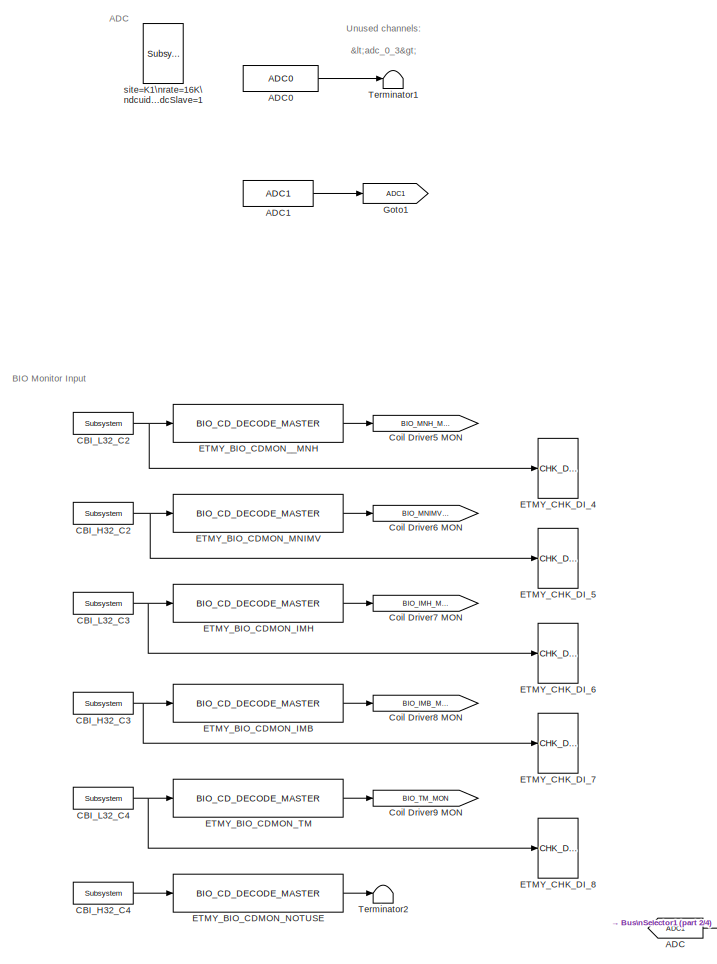
[diagram: root canvas - part 1/4, top left region]
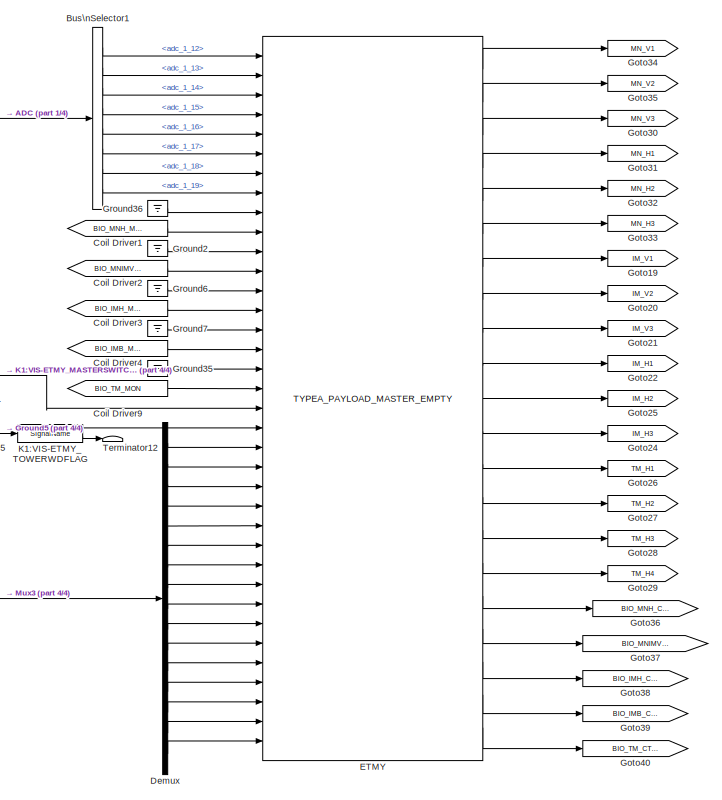
[diagram: root canvas - part 2/4, central region]
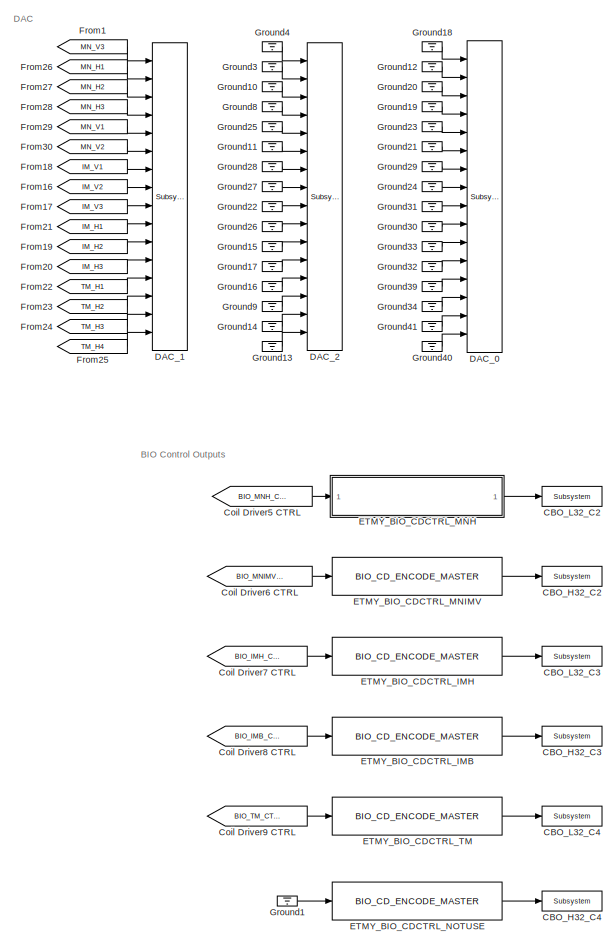
[diagram: root canvas - part 3/4, middle right region]
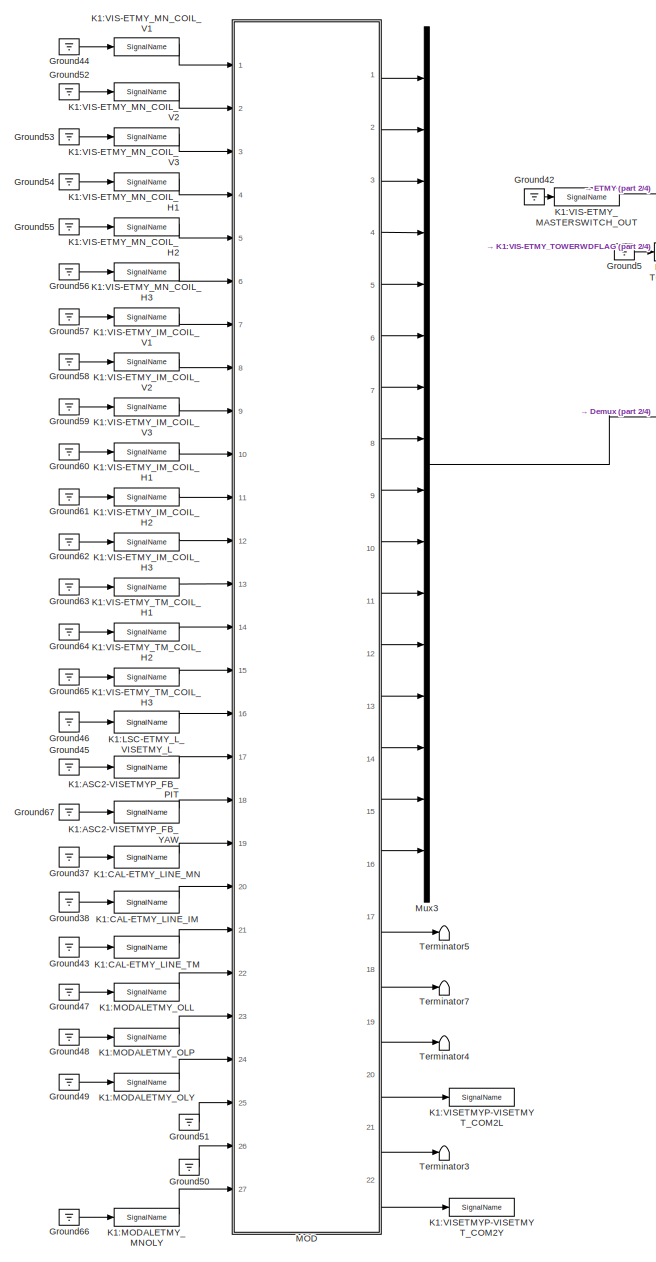
[diagram: root canvas - part 4/4, bottom left region]
MODEL k1visetmyp
KIND model
BLOCK [From] ADC
  GotoTag = ADC1
  SID = 519
BLOCK [Reference] ADC0  REF=cdsAdcx0/ADC0
  AttributesFormatString = %<Description>\\n%<Tag>
  Description = type-GSC_16AI64SSA\ncard_num=0
  Ports = [0, 1]
  SID = 727
  SourceBlock = cdsAdcx0/ADC0
  SourceType = SubSystem
  Tag = cdsAdc
BLOCK [Reference] ADC1  REF=cdsAdcx1/ADC1
  AttributesFormatString = %<Description>\\n%<Tag>
  Description = type-GSC_16AI64SSA\ncard_num=1
  Ports = [0, 1]
  SID = 111
  SourceBlock = cdsAdcx1/ADC1
  SourceType = SubSystem
  Tag = cdsAdc
BLOCK [BusSelector] Bus\nSelector1
  OutputSignals = adc_1_12,adc_1_13,adc_1_14,adc_1_15,adc_1_16,adc_1_17,adc_1_18,adc_1_19
  Ports = [1, 8]
  SID = 696
BLOCK [Reference] CBI_H32_C2  REF=cdsCDI64/Subsystem
  AttributesFormatString = %<Tag>\\n%<Description>
  Description = card_num=5
  Ports = [0, 1]
  SID = 624
  SourceBlock = cdsCDI64/Subsystem
  SourceType = SubSystem
  Tag = cdsCDI64
BLOCK [Reference] CBI_H32_C3  REF=cdsCDI64/Subsystem
  AttributesFormatString = %<Tag>\\n%<Description>
  Description = card_num=7
  Ports = [0, 1]
  SID = 625
  SourceBlock = cdsCDI64/Subsystem
  SourceType = SubSystem
  Tag = cdsCDI64
BLOCK [Reference] CBI_H32_C4  REF=cdsCDI64/Subsystem
  AttributesFormatString = %<Tag>\\n%<Description>
  Description = card_num=9
  Ports = [0, 1]
  SID = 626
  SourceBlock = cdsCDI64/Subsystem
  SourceType = SubSystem
  Tag = cdsCDI64
BLOCK [Reference] CBI_L32_C2  REF=cdsCDI64/Subsystem
  AttributesFormatString = %<Tag>\\n%<Description>
  Description = card_num=4
  Ports = [0, 1]
  SID = 627
  SourceBlock = cdsCDI64/Subsystem
  SourceType = SubSystem
  Tag = cdsCDI64
BLOCK [Reference] CBI_L32_C3  REF=cdsCDI64/Subsystem
  AttributesFormatString = %<Tag>\\n%<Description>
  Description = card_num=6
  Ports = [0, 1]
  SID = 628
  SourceBlock = cdsCDI64/Subsystem
  SourceType = SubSystem
  Tag = cdsCDI64
BLOCK [Reference] CBI_L32_C4  REF=cdsCDI64/Subsystem
  AttributesFormatString = %<Tag>\\n%<Description>
  Description = card_num=8
  Ports = [0, 1]
  SID = 629
  SourceBlock = cdsCDI64/Subsystem
  SourceType = SubSystem
  Tag = cdsCDI64
BLOCK [Reference] CBO_H32_C2  REF=cdsCDO64/Subsystem
  AttributesFormatString = %<Tag>\\n%<Description>
  Description = card_num=5
  Ports = [1]
  SID = 549
  SourceBlock = cdsCDO64/Subsystem
  SourceType = SubSystem
  Tag = cdsCDO64
BLOCK [Reference] CBO_H32_C3  REF=cdsCDO64/Subsystem
  AttributesFormatString = %<Tag>\\n%<Description>
  Description = card_num=7
  Ports = [1]
  SID = 550
  SourceBlock = cdsCDO64/Subsystem
  SourceType = SubSystem
  Tag = cdsCDO64
BLOCK [Reference] CBO_H32_C4  REF=cdsCDO64/Subsystem
  AttributesFormatString = %<Tag>\\n%<Description>
  Description = card_num=9
  Ports = [1]
  SID = 551
  SourceBlock = cdsCDO64/Subsystem
  SourceType = SubSystem
  Tag = cdsCDO64
BLOCK [Reference] CBO_L32_C2  REF=cdsCDO64/Subsystem
  AttributesFormatString = %<Tag>\\n%<Description>
  Description = card_num=4
  Ports = [1]
  SID = 552
  SourceBlock = cdsCDO64/Subsystem
  SourceType = SubSystem
  Tag = cdsCDO64
BLOCK [Reference] CBO_L32_C3  REF=cdsCDO64/Subsystem
  AttributesFormatString = %<Tag>\\n%<Description>
  Description = card_num=6
  Ports = [1]
  SID = 553
  SourceBlock = cdsCDO64/Subsystem
  SourceType = SubSystem
  Tag = cdsCDO64
BLOCK [Reference] CBO_L32_C4  REF=cdsCDO64/Subsystem
  AttributesFormatString = %<Tag>\\n%<Description>
  Description = card_num=8
  Ports = [1]
  SID = 554
  SourceBlock = cdsCDO64/Subsystem
  SourceType = SubSystem
  Tag = cdsCDO64
BLOCK [From] Coil Driver1
  GotoTag = BIO_MNH_MON
  SID = 618
BLOCK [From] Coil Driver2
  GotoTag = BIO_MNIMV_MON
  SID = 619
BLOCK [From] Coil Driver3
  GotoTag = BIO_IMH_MON
  SID = 620
BLOCK [From] Coil Driver4
  GotoTag = BIO_IMB_MON
  SID = 621
BLOCK [From] Coil Driver5 CTRL
  GotoTag = BIO_MNH_CTRL
  SID = 555
BLOCK [Goto] Coil Driver5 MON
  GotoTag = BIO_MNH_MON
  SID = 630
BLOCK [From] Coil Driver6 CTRL
  GotoTag = BIO_MNIMV_CTRL
  SID = 556
BLOCK [Goto] Coil Driver6 MON
  GotoTag = BIO_MNIMV_MON
  SID = 631
BLOCK [From] Coil Driver7 CTRL
  GotoTag = BIO_IMH_CTRL
  SID = 557
BLOCK [Goto] Coil Driver7 MON
  GotoTag = BIO_IMH_MON
  SID = 632
BLOCK [From] Coil Driver8 CTRL
  GotoTag = BIO_IMB_CTRL
  SID = 558
BLOCK [Goto] Coil Driver8 MON
  GotoTag = BIO_IMB_MON
  SID = 633
BLOCK [From] Coil Driver9
  GotoTag = BIO_TM_MON
  SID = 622
BLOCK [From] Coil Driver9 CTRL
  GotoTag = BIO_TM_CTRL
  SID = 559
BLOCK [Goto] Coil Driver9 MON
  GotoTag = BIO_TM_MON
  SID = 634
BLOCK [Reference] DAC_0  REF=dac/Subsystem  (lib defined in slx_40ef132df75b, slx_b7657ccccc5b, +4 more)
  AttributesFormatString = %<Description>
  Description = type=GSC_16AO16,\ncard_num=0
  Ports = [16]
  SID = 729
  SourceBlock = dac/Subsystem
  SourceType = SubSystem
BLOCK [Reference] DAC_1  REF=dac/Subsystem  (lib defined in slx_40ef132df75b, slx_b7657ccccc5b, +4 more)
  AttributesFormatString = %<Description>
  Description = type=GSC_16AO16,\ncard_num=1
  Ports = [16]
  SID = 112
  SourceBlock = dac/Subsystem
  SourceType = SubSystem
BLOCK [Reference] DAC_2  REF=dac/Subsystem  (lib defined in slx_40ef132df75b, slx_b7657ccccc5b, +4 more)
  AttributesFormatString = %<Description>
  Description = type=GSC_16AO16,\ncard_num=2
  Ports = [16]
  SID = 643
  SourceBlock = dac/Subsystem
  SourceType = SubSystem
BLOCK [Demux] Demux
  DisplayOption = bar
  Outputs = 16
  Ports = [1, 16]
  SID = 879
BLOCK [Reference] ETMY  REF=TYPEA_MASTER/TYPEA_PAYLOAD_MASTER_EMPTY
  Ports = [36, 21]
  SID = 1086
  SourceBlock = TYPEA_MASTER/TYPEA_PAYLOAD_MASTER_EMPTY
  SourceType = SubSystem
BLOCK [Reference] ETMY_BIO_CDCTRL_IMB  REF=BIO_CD_ENCODE_MASTER/BIO_CD_ENCODE_MASTER
  Ports = [1, 1]
  SID = 560
  SourceBlock = BIO_CD_ENCODE_MASTER/BIO_CD_ENCODE_MASTER
  SourceType = SubSystem
BLOCK [Reference] ETMY_BIO_CDCTRL_IMH  REF=BIO_CD_ENCODE_MASTER/BIO_CD_ENCODE_MASTER
  Ports = [1, 1]
  SID = 561
  SourceBlock = BIO_CD_ENCODE_MASTER/BIO_CD_ENCODE_MASTER
  SourceType = SubSystem
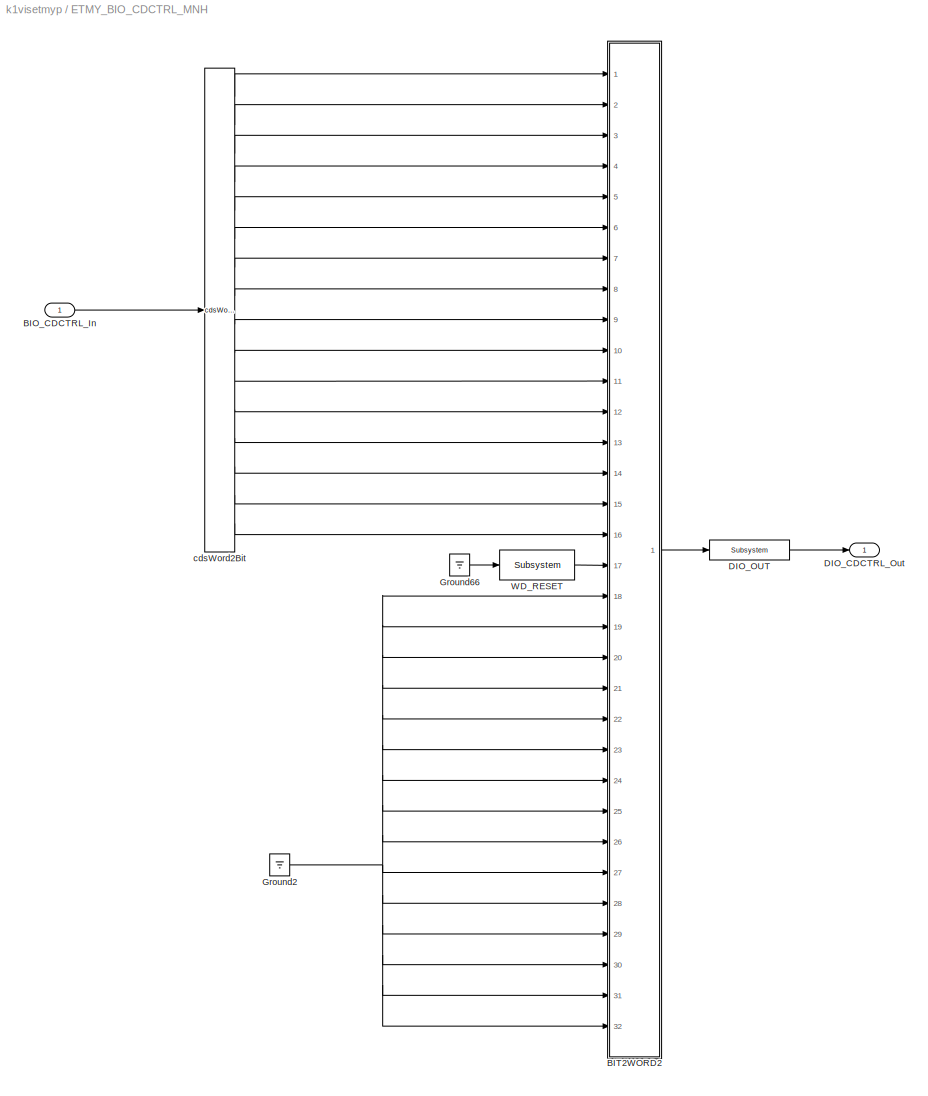
BLOCK [SubSystem] ETMY_BIO_CDCTRL_MNH
  Ports = [1, 1]
  RequestExecContextInheritance = off
  SID = 562
  Variant = off
BLOCK [Inport] ETMY_BIO_CDCTRL_MNH/BIO_CDCTRL_In
  IconDisplay = Port number
  SID = 563
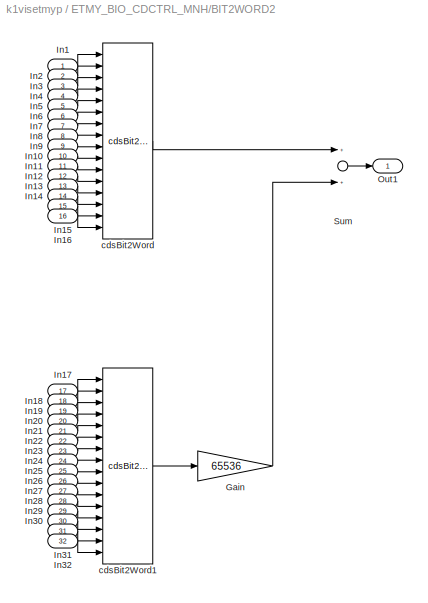
BLOCK [SubSystem] ETMY_BIO_CDCTRL_MNH/BIT2WORD2
  Ports = [32, 1]
  RequestExecContextInheritance = off
  SID = 564
  Variant = off
BLOCK [Gain] ETMY_BIO_CDCTRL_MNH/BIT2WORD2/Gain
  Gain = 65536
  OutDataTypeStr = Inherit: Inherit via internal rule
  ParamDataTypeStr = Inherit: Inherit via internal rule
  SID = 597
  SaturateOnIntegerOverflow = off
BLOCK [Inport] ETMY_BIO_CDCTRL_MNH/BIT2WORD2/In1
  IconDisplay = Port number
  SID = 565
BLOCK [Inport] ETMY_BIO_CDCTRL_MNH/BIT2WORD2/In10
  IconDisplay = Port number
  Port = 10
  SID = 574
BLOCK [Inport] ETMY_BIO_CDCTRL_MNH/BIT2WORD2/In11
  IconDisplay = Port number
  Port = 11
  SID = 575
BLOCK [Inport] ETMY_BIO_CDCTRL_MNH/BIT2WORD2/In12
  IconDisplay = Port number
  Port = 12
  SID = 576
BLOCK [Inport] ETMY_BIO_CDCTRL_MNH/BIT2WORD2/In13
  IconDisplay = Port number
  Port = 13
  SID = 577
BLOCK [Inport] ETMY_BIO_CDCTRL_MNH/BIT2WORD2/In14
  IconDisplay = Port number
  Port = 14
  SID = 578
BLOCK [Inport] ETMY_BIO_CDCTRL_MNH/BIT2WORD2/In15
  IconDisplay = Port number
  Port = 15
  SID = 579
BLOCK [Inport] ETMY_BIO_CDCTRL_MNH/BIT2WORD2/In16
  IconDisplay = Port number
  Port = 16
  SID = 580
BLOCK [Inport] ETMY_BIO_CDCTRL_MNH/BIT2WORD2/In17
  IconDisplay = Port number
  Port = 17
  SID = 581
BLOCK [Inport] ETMY_BIO_CDCTRL_MNH/BIT2WORD2/In18
  IconDisplay = Port number
  Port = 18
  SID = 582
BLOCK [Inport] ETMY_BIO_CDCTRL_MNH/BIT2WORD2/In19
  IconDisplay = Port number
  Port = 19
  SID = 583
BLOCK [Inport] ETMY_BIO_CDCTRL_MNH/BIT2WORD2/In2
  IconDisplay = Port number
  Port = 2
  SID = 566
BLOCK [Inport] ETMY_BIO_CDCTRL_MNH/BIT2WORD2/In20
  IconDisplay = Port number
  Port = 20
  SID = 584
BLOCK [Inport] ETMY_BIO_CDCTRL_MNH/BIT2WORD2/In21
  IconDisplay = Port number
  Port = 21
  SID = 585
BLOCK [Inport] ETMY_BIO_CDCTRL_MNH/BIT2WORD2/In22
  IconDisplay = Port number
  Port = 22
  SID = 586
BLOCK [Inport] ETMY_BIO_CDCTRL_MNH/BIT2WORD2/In23
  IconDisplay = Port number
  Port = 23
  SID = 587
BLOCK [Inport] ETMY_BIO_CDCTRL_MNH/BIT2WORD2/In24
  IconDisplay = Port number
  Port = 24
  SID = 588
BLOCK [Inport] ETMY_BIO_CDCTRL_MNH/BIT2WORD2/In25
  IconDisplay = Port number
  Port = 25
  SID = 589
BLOCK [Inport] ETMY_BIO_CDCTRL_MNH/BIT2WORD2/In26
  IconDisplay = Port number
  Port = 26
  SID = 590
BLOCK [Inport] ETMY_BIO_CDCTRL_MNH/BIT2WORD2/In27
  IconDisplay = Port number
  Port = 27
  SID = 591
BLOCK [Inport] ETMY_BIO_CDCTRL_MNH/BIT2WORD2/In28
  IconDisplay = Port number
  Port = 28
  SID = 592
BLOCK [Inport] ETMY_BIO_CDCTRL_MNH/BIT2WORD2/In29
  IconDisplay = Port number
  Port = 29
  SID = 593
BLOCK [Inport] ETMY_BIO_CDCTRL_MNH/BIT2WORD2/In3
  IconDisplay = Port number
  Port = 3
  SID = 567
BLOCK [Inport] ETMY_BIO_CDCTRL_MNH/BIT2WORD2/In30
  IconDisplay = Port number
  Port = 30
  SID = 594
BLOCK [Inport] ETMY_BIO_CDCTRL_MNH/BIT2WORD2/In31
  IconDisplay = Port number
  Port = 31
  SID = 595
BLOCK [Inport] ETMY_BIO_CDCTRL_MNH/BIT2WORD2/In32
  IconDisplay = Port number
  Port = 32
  SID = 596
BLOCK [Inport] ETMY_BIO_CDCTRL_MNH/BIT2WORD2/In4
  IconDisplay = Port number
  Port = 4
  SID = 568
BLOCK [Inport] ETMY_BIO_CDCTRL_MNH/BIT2WORD2/In5
  IconDisplay = Port number
  Port = 5
  SID = 569
BLOCK [Inport] ETMY_BIO_CDCTRL_MNH/BIT2WORD2/In6
  IconDisplay = Port number
  Port = 6
  SID = 570
BLOCK [Inport] ETMY_BIO_CDCTRL_MNH/BIT2WORD2/In7
  IconDisplay = Port number
  Port = 7
  SID = 571
BLOCK [Inport] ETMY_BIO_CDCTRL_MNH/BIT2WORD2/In8
  IconDisplay = Port number
  Port = 8
  SID = 572
BLOCK [Inport] ETMY_BIO_CDCTRL_MNH/BIT2WORD2/In9
  IconDisplay = Port number
  Port = 9
  SID = 573
BLOCK [Outport] ETMY_BIO_CDCTRL_MNH/BIT2WORD2/Out1
  IconDisplay = Port number
  SID = 601
BLOCK [Sum] ETMY_BIO_CDCTRL_MNH/BIT2WORD2/Sum
  InputSameDT = off
  OutDataTypeStr = Inherit: Inherit via internal rule
  Ports = [2, 1]
  SID = 598
  SaturateOnIntegerOverflow = off
BLOCK [Reference] ETMY_BIO_CDCTRL_MNH/BIT2WORD2/cdsBit2Word  REF=cdsBit2Word/cdsBit2Word
  AttributesFormatString = %<Tag>
  Description = Forms single 16 bit integer from 16 0/1 inputs.
  Ports = [16, 1]
  SID = 599
  SourceBlock = cdsBit2Word/cdsBit2Word
  SourceType = SubSystem
  Tag = cdsBit2Word
BLOCK [Reference] ETMY_BIO_CDCTRL_MNH/BIT2WORD2/cdsBit2Word1  REF=cdsBit2Word/cdsBit2Word
  AttributesFormatString = %<Tag>
  Description = Forms single 16 bit integer from 16 0/1 inputs.
  Ports = [16, 1]
  SID = 600
  SourceBlock = cdsBit2Word/cdsBit2Word
  SourceType = SubSystem
  Tag = cdsBit2Word
BLOCK [Outport] ETMY_BIO_CDCTRL_MNH/DIO_CDCTRL_Out
  IconDisplay = Port number
  SID = 607
BLOCK [Reference] ETMY_BIO_CDCTRL_MNH/DIO_OUT  REF=cdsEpicsOut/Subsystem
  AttributesFormatString = %<Tag>
  Description = Purpose:                                          \nOutput a FE signal to an EPICS channel.           \n                                                  \nOperation:                                        \nTakes input value and passes it to EPICS record.  \n                                                  \nUsage:                                            \nName the part with the desired EPICS...<+14ch>
  Ports = [1, 1]
  SID = 602
  SourceBlock = cdsEpicsOut/Subsystem
  SourceType = SubSystem
  Tag = cdsEpicsOutput
BLOCK [Ground] ETMY_BIO_CDCTRL_MNH/Ground2
  SID = 603
BLOCK [Ground] ETMY_BIO_CDCTRL_MNH/Ground66
  SID = 604
BLOCK [Reference] ETMY_BIO_CDCTRL_MNH/WD_RESET  REF=cdsEpicsBinIn/Subsystem
  AttributesFormatString = %<Tag>
  Description = Purpose:                                                                            \nCreate an EPICS binary (0 or 1) input channel to the FE realtime controls.          \n                                                                                    \nOperation:                                                                          \nOutputs value from an EPICS ai record. Value is binary i...<+252ch>
  Ports = [1, 1]
  SID = 605
  SourceBlock = cdsEpicsBinIn/Subsystem
  SourceType = SubSystem
  Tag = cdsEpicsBinIn
BLOCK [Reference] ETMY_BIO_CDCTRL_MNH/cdsWord2Bit  REF=cdsWord2Bit/cdsWord2Bit
  AttributesFormatString = cdsWord2Bit
  Description = Generate 16 0/1 outputs from single 16-bit integer input
  Ports = [1, 16]
  SID = 606
  SourceBlock = cdsWord2Bit/cdsWord2Bit
  SourceType = SubSystem
  Tag = cdsWord2Bit
BLOCK [Reference] ETMY_BIO_CDCTRL_MNIMV  REF=BIO_CD_ENCODE_MASTER/BIO_CD_ENCODE_MASTER
  Ports = [1, 1]
  SID = 608
  SourceBlock = BIO_CD_ENCODE_MASTER/BIO_CD_ENCODE_MASTER
  SourceType = SubSystem
BLOCK [Reference] ETMY_BIO_CDCTRL_NOTUSE  REF=BIO_CD_ENCODE_MASTER/BIO_CD_ENCODE_MASTER
  Ports = [1, 1]
  SID = 609
  SourceBlock = BIO_CD_ENCODE_MASTER/BIO_CD_ENCODE_MASTER
  SourceType = SubSystem
BLOCK [Reference] ETMY_BIO_CDCTRL_TM  REF=BIO_CD_ENCODE_MASTER/BIO_CD_ENCODE_MASTER
  Ports = [1, 1]
  SID = 610
  SourceBlock = BIO_CD_ENCODE_MASTER/BIO_CD_ENCODE_MASTER
  SourceType = SubSystem
BLOCK [Reference] ETMY_BIO_CDMON_IMB  REF=BIO_CD_DECODE_MASTER/BIO_CD_DECODE_MASTER
  Ports = [1, 1]
  SID = 635
  SourceBlock = BIO_CD_DECODE_MASTER/BIO_CD_DECODE_MASTER
  SourceType = SubSystem
BLOCK [Reference] ETMY_BIO_CDMON_IMH  REF=BIO_CD_DECODE_MASTER/BIO_CD_DECODE_MASTER
  Ports = [1, 1]
  SID = 636
  SourceBlock = BIO_CD_DECODE_MASTER/BIO_CD_DECODE_MASTER
  SourceType = SubSystem
BLOCK [Reference] ETMY_BIO_CDMON_MNIMV  REF=BIO_CD_DECODE_MASTER/BIO_CD_DECODE_MASTER
  Ports = [1, 1]
  SID = 637
  SourceBlock = BIO_CD_DECODE_MASTER/BIO_CD_DECODE_MASTER
  SourceType = SubSystem
BLOCK [Reference] ETMY_BIO_CDMON_NOTUSE  REF=BIO_CD_DECODE_MASTER/BIO_CD_DECODE_MASTER
  Ports = [1, 1]
  SID = 638
  SourceBlock = BIO_CD_DECODE_MASTER/BIO_CD_DECODE_MASTER
  SourceType = SubSystem
BLOCK [Reference] ETMY_BIO_CDMON_TM  REF=BIO_CD_DECODE_MASTER/BIO_CD_DECODE_MASTER
  Ports = [1, 1]
  SID = 639
  SourceBlock = BIO_CD_DECODE_MASTER/BIO_CD_DECODE_MASTER
  SourceType = SubSystem
BLOCK [Reference] ETMY_BIO_CDMON__MNH  REF=BIO_CD_DECODE_MASTER/BIO_CD_DECODE_MASTER
  Ports = [1, 1]
  SID = 640
  SourceBlock = BIO_CD_DECODE_MASTER/BIO_CD_DECODE_MASTER
  SourceType = SubSystem
BLOCK [Reference] ETMY_CHK_DI_4  REF=CHK_DIO/CHK_DI_0
  Ports = [1]
  SID = 687
  SourceBlock = CHK_DIO/CHK_DI_0
  SourceType = SubSystem
BLOCK [Reference] ETMY_CHK_DI_5  REF=CHK_DIO/CHK_DI_0
  Ports = [1]
  SID = 688
  SourceBlock = CHK_DIO/CHK_DI_0
  SourceType = SubSystem
BLOCK [Reference] ETMY_CHK_DI_6  REF=CHK_DIO/CHK_DI_0
  Ports = [1]
  SID = 689
  SourceBlock = CHK_DIO/CHK_DI_0
  SourceType = SubSystem
BLOCK [Reference] ETMY_CHK_DI_7  REF=CHK_DIO/CHK_DI_0
  Ports = [1]
  SID = 690
  SourceBlock = CHK_DIO/CHK_DI_0
  SourceType = SubSystem
BLOCK [Reference] ETMY_CHK_DI_8  REF=CHK_DIO/CHK_DI_0
  Ports = [1]
  SID = 691
  SourceBlock = CHK_DIO/CHK_DI_0
  SourceType = SubSystem
BLOCK [From] From1
  GotoTag = MN_V3
  SID = 533
BLOCK [From] From16
  GotoTag = IM_V2
  SID = 534
BLOCK [From] From17
  GotoTag = IM_V3
  SID = 535
BLOCK [From] From18
  GotoTag = IM_V1
  SID = 536
BLOCK [From] From19
  GotoTag = IM_H2
  SID = 537
BLOCK [From] From20
  GotoTag = IM_H3
  SID = 538
BLOCK [From] From21
  GotoTag = IM_H1
  SID = 539
BLOCK [From] From22
  GotoTag = TM_H1
  SID = 540
BLOCK [From] From23
  GotoTag = TM_H2
  SID = 541
BLOCK [From] From24
  GotoTag = TM_H3
  SID = 542
BLOCK [From] From25
  GotoTag = TM_H4
  SID = 543
BLOCK [From] From26
  GotoTag = MN_H1
  SID = 544
BLOCK [From] From27
  GotoTag = MN_H2
  SID = 545
BLOCK [From] From28
  GotoTag = MN_H3
  SID = 546
BLOCK [From] From29
  GotoTag = MN_V1
  SID = 547
BLOCK [From] From30
  GotoTag = MN_V2
  SID = 548
BLOCK [Goto] Goto1
  GotoTag = ADC1
  SID = 518
BLOCK [Goto] Goto19
  GotoTag = IM_V1
  SID = 502
BLOCK [Goto] Goto20
  GotoTag = IM_V2
  SID = 503
BLOCK [Goto] Goto21
  GotoTag = IM_V3
  SID = 504
BLOCK [Goto] Goto22
  GotoTag = IM_H1
  SID = 505
BLOCK [Goto] Goto24
  GotoTag = IM_H3
  SID = 506
BLOCK [Goto] Goto25
  GotoTag = IM_H2
  SID = 507
BLOCK [Goto] Goto26
  GotoTag = TM_H1
  SID = 508
BLOCK [Goto] Goto27
  GotoTag = TM_H2
  SID = 509
BLOCK [Goto] Goto28
  GotoTag = TM_H3
  SID = 510
BLOCK [Goto] Goto29
  GotoTag = TM_H4
  SID = 511
BLOCK [Goto] Goto30
  GotoTag = MN_V3
  SID = 512
BLOCK [Goto] Goto31
  GotoTag = MN_H1
  SID = 513
BLOCK [Goto] Goto32
  GotoTag = MN_H2
  SID = 514
BLOCK [Goto] Goto33
  GotoTag = MN_H3
  SID = 515
BLOCK [Goto] Goto34
  GotoTag = MN_V1
  SID = 516
BLOCK [Goto] Goto35
  GotoTag = MN_V2
  SID = 517
BLOCK [Goto] Goto36
  GotoTag = BIO_MNH_CTRL
  SID = 613
BLOCK [Goto] Goto37
  GotoTag = BIO_MNIMV_CTRL
  SID = 614
BLOCK [Goto] Goto38
  GotoTag = BIO_IMH_CTRL
  SID = 615
BLOCK [Goto] Goto39
  GotoTag = BIO_IMB_CTRL
  SID = 616
BLOCK [Goto] Goto40
  GotoTag = BIO_TM_CTRL
  SID = 617
BLOCK [Ground] Ground1
  SID = 611
BLOCK [Ground] Ground10
  SID = 1092
BLOCK [Ground] Ground11
  SID = 653
BLOCK [Ground] Ground12
  SID = 730
BLOCK [Ground] Ground13
  SID = 655
BLOCK [Ground] Ground14
  SID = 656
BLOCK [Ground] Ground15
  SID = 657
BLOCK [Ground] Ground16
  SID = 658
BLOCK [Ground] Ground17
  SID = 659
BLOCK [Ground] Ground18
  SID = 731
BLOCK [Ground] Ground19
  SID = 732
BLOCK [Ground] Ground2
  SID = 795
BLOCK [Ground] Ground20
  SID = 733
BLOCK [Ground] Ground21
  SID = 734
BLOCK [Ground] Ground22
  SID = 663
BLOCK [Ground] Ground23
  SID = 735
BLOCK [Ground] Ground24
  SID = 736
BLOCK [Ground] Ground25
  SID = 665
BLOCK [Ground] Ground26
  SID = 666
BLOCK [Ground] Ground27
  SID = 667
BLOCK [Ground] Ground28
  SID = 668
BLOCK [Ground] Ground29
  SID = 737
BLOCK [Ground] Ground3
  SID = 1089
BLOCK [Ground] Ground30
  SID = 738
BLOCK [Ground] Ground31
  SID = 739
BLOCK [Ground] Ground32
  SID = 740
BLOCK [Ground] Ground33
  SID = 741
BLOCK [Ground] Ground34
  SID = 742
BLOCK [Ground] Ground35
  SID = 798
BLOCK [Ground] Ground36
  SID = 799
BLOCK [Ground] Ground37
  SID = 803
BLOCK [Ground] Ground38
  SID = 806
BLOCK [Ground] Ground39
  SID = 743
BLOCK [Ground] Ground4
  SID = 1090
BLOCK [Ground] Ground40
  SID = 744
BLOCK [Ground] Ground41
  SID = 745
BLOCK [Ground] Ground42
  SID = 1093
BLOCK [Ground] Ground43
  SID = 756
BLOCK [Ground] Ground44
  SID = 998
BLOCK [Ground] Ground45
  SID = 1084
BLOCK [Ground] Ground46
  SID = 759
BLOCK [Ground] Ground47
  SID = 1107
BLOCK [Ground] Ground48
  SID = 1108
BLOCK [Ground] Ground49
  SID = 1109
BLOCK [Ground] Ground5
  SID = 726
BLOCK [Ground] Ground50
  SID = 1113
BLOCK [Ground] Ground51
  SID = 1114
BLOCK [Ground] Ground52
  SID = 999
BLOCK [Ground] Ground53
  SID = 1000
BLOCK [Ground] Ground54
  SID = 1001
BLOCK [Ground] Ground55
  SID = 1002
BLOCK [Ground] Ground56
  SID = 1003
BLOCK [Ground] Ground57
  SID = 1004
BLOCK [Ground] Ground58
  SID = 1005
BLOCK [Ground] Ground59
  SID = 1006
BLOCK [Ground] Ground6
  SID = 796
BLOCK [Ground] Ground60
  SID = 1007
BLOCK [Ground] Ground61
  SID = 1008
BLOCK [Ground] Ground62
  SID = 1009
BLOCK [Ground] Ground63
  SID = 1010
BLOCK [Ground] Ground64
  SID = 1011
BLOCK [Ground] Ground65
  SID = 1012
BLOCK [Ground] Ground66
  SID = 1115
BLOCK [Ground] Ground67
  SID = 1085
BLOCK [Ground] Ground7
  SID = 797
BLOCK [Ground] Ground8
  SID = 1091
BLOCK [Ground] Ground9
  SID = 651
BLOCK [Reference] K1:ASC2-VISETMYP_FB_PIT  REF=cdsIPCx/SignalName
  AttributesFormatString = %<Description>\\n%<Tag>
  Description = card=1
  Ports = [1, 2]
  SID = 1080
  SourceBlock = cdsIPCx/SignalName
  SourceType = SubSystem
  Tag = cdsIPCx_RFM
BLOCK [Reference] K1:ASC2-VISETMYP_FB_YAW  REF=cdsIPCx/SignalName
  AttributesFormatString = %<Description>\\n%<Tag>
  Description = card=1
  Ports = [1, 2]
  SID = 1081
  SourceBlock = cdsIPCx/SignalName
  SourceType = SubSystem
  Tag = cdsIPCx_RFM
BLOCK [Reference] K1:CAL-ETMY_LINE_IM  REF=cdsIPCx/SignalName
  AttributesFormatString = %<Description>\\n%<Tag>
  Description = card=1
  Ports = [1, 2]
  SID = 807
  SourceBlock = cdsIPCx/SignalName
  SourceType = SubSystem
  Tag = cdsIPCx_RFM
BLOCK [Reference] K1:CAL-ETMY_LINE_MN  REF=cdsIPCx/SignalName
  AttributesFormatString = %<Description>\\n%<Tag>
  Description = card=1
  Ports = [1, 2]
  SID = 804
  SourceBlock = cdsIPCx/SignalName
  SourceType = SubSystem
  Tag = cdsIPCx_RFM
BLOCK [Reference] K1:CAL-ETMY_LINE_TM  REF=cdsIPCx/SignalName
  AttributesFormatString = %<Description>\\n%<Tag>
  Description = card=1
  Ports = [1, 2]
  SID = 762
  SourceBlock = cdsIPCx/SignalName
  SourceType = SubSystem
  Tag = cdsIPCx_RFM
BLOCK [Reference] K1:LSC-ETMY_L_VISETMY_L  REF=cdsIPCx/SignalName
  AttributesFormatString = %<Description>\\n%<Tag>
  Description = card=1
  Ports = [1, 2]
  SID = 763
  SourceBlock = cdsIPCx/SignalName
  SourceType = SubSystem
  Tag = cdsIPCx_RFM
BLOCK [Reference] K1:MODALETMY_MNOLY  REF=cdsIPCx/SignalName
  AttributesFormatString = %<Tag>
  Description = Inter-Process Communication via Shared memory.
  Ports = [1, 2]
  SID = 1116
  SourceBlock = cdsIPCx/SignalName
  SourceType = SubSystem
  Tag = cdsIPCx_SHMEM
BLOCK [Reference] K1:MODALETMY_OLL  REF=cdsIPCx/SignalName
  AttributesFormatString = %<Tag>
  Description = Inter-Process Communication via Shared memory.
  Ports = [1, 2]
  SID = 1101
  SourceBlock = cdsIPCx/SignalName
  SourceType = SubSystem
  Tag = cdsIPCx_SHMEM
BLOCK [Reference] K1:MODALETMY_OLP  REF=cdsIPCx/SignalName
  AttributesFormatString = %<Tag>
  Description = Inter-Process Communication via Shared memory.
  Ports = [1, 2]
  SID = 1102
  SourceBlock = cdsIPCx/SignalName
  SourceType = SubSystem
  Tag = cdsIPCx_SHMEM
BLOCK [Reference] K1:MODALETMY_OLY  REF=cdsIPCx/SignalName
  AttributesFormatString = %<Tag>
  Description = Inter-Process Communication via Shared memory.
  Ports = [1, 2]
  SID = 1103
  SourceBlock = cdsIPCx/SignalName
  SourceType = SubSystem
  Tag = cdsIPCx_SHMEM
BLOCK [Reference] K1:VIS-ETMY_IM_COIL_H1  REF=cdsIPCx/SignalName
  AttributesFormatString = %<Tag>
  Description = Inter-Process Communication via Shared memory.
  Ports = [1, 2]
  SID = 1019
  SourceBlock = cdsIPCx/SignalName
  SourceType = SubSystem
  Tag = cdsIPCx_SHMEM
BLOCK [Reference] K1:VIS-ETMY_IM_COIL_H2  REF=cdsIPCx/SignalName
  AttributesFormatString = %<Tag>
  Description = Inter-Process Communication via Shared memory.
  Ports = [1, 2]
  SID = 1020
  SourceBlock = cdsIPCx/SignalName
  SourceType = SubSystem
  Tag = cdsIPCx_SHMEM
BLOCK [Reference] K1:VIS-ETMY_IM_COIL_H3  REF=cdsIPCx/SignalName
  AttributesFormatString = %<Tag>
  Description = Inter-Process Communication via Shared memory.
  Ports = [1, 2]
  SID = 1021
  SourceBlock = cdsIPCx/SignalName
  SourceType = SubSystem
  Tag = cdsIPCx_SHMEM
BLOCK [Reference] K1:VIS-ETMY_IM_COIL_V1  REF=cdsIPCx/SignalName
  AttributesFormatString = %<Tag>
  Description = Inter-Process Communication via Shared memory.
  Ports = [1, 2]
  SID = 1022
  SourceBlock = cdsIPCx/SignalName
  SourceType = SubSystem
  Tag = cdsIPCx_SHMEM
BLOCK [Reference] K1:VIS-ETMY_IM_COIL_V2  REF=cdsIPCx/SignalName
  AttributesFormatString = %<Tag>
  Description = Inter-Process Communication via Shared memory.
  Ports = [1, 2]
  SID = 1023
  SourceBlock = cdsIPCx/SignalName
  SourceType = SubSystem
  Tag = cdsIPCx_SHMEM
BLOCK [Reference] K1:VIS-ETMY_IM_COIL_V3  REF=cdsIPCx/SignalName
  AttributesFormatString = %<Tag>
  Description = Inter-Process Communication via Shared memory.
  Ports = [1, 2]
  SID = 1024
  SourceBlock = cdsIPCx/SignalName
  SourceType = SubSystem
  Tag = cdsIPCx_SHMEM
BLOCK [Reference] K1:VIS-ETMY_MASTERSWITCH_OUT  REF=cdsIPCx/SignalName
  AttributesFormatString = %<Tag>
  Description = Inter-Process Communication via Shared memory.
  Ports = [1, 2]
  SID = 1088
  SourceBlock = cdsIPCx/SignalName
  SourceType = SubSystem
  Tag = cdsIPCx_SHMEM
BLOCK [Reference] K1:VIS-ETMY_MN_COIL_H1  REF=cdsIPCx/SignalName
  AttributesFormatString = %<Tag>
  Description = Inter-Process Communication via Shared memory.
  Ports = [1, 2]
  SID = 1025
  SourceBlock = cdsIPCx/SignalName
  SourceType = SubSystem
  Tag = cdsIPCx_SHMEM
BLOCK [Reference] K1:VIS-ETMY_MN_COIL_H2  REF=cdsIPCx/SignalName
  AttributesFormatString = %<Tag>
  Description = Inter-Process Communication via Shared memory.
  Ports = [1, 2]
  SID = 1026
  SourceBlock = cdsIPCx/SignalName
  SourceType = SubSystem
  Tag = cdsIPCx_SHMEM
BLOCK [Reference] K1:VIS-ETMY_MN_COIL_H3  REF=cdsIPCx/SignalName
  AttributesFormatString = %<Tag>
  Description = Inter-Process Communication via Shared memory.
  Ports = [1, 2]
  SID = 1027
  SourceBlock = cdsIPCx/SignalName
  SourceType = SubSystem
  Tag = cdsIPCx_SHMEM
BLOCK [Reference] K1:VIS-ETMY_MN_COIL_V1  REF=cdsIPCx/SignalName
  AttributesFormatString = %<Tag>
  Description = Inter-Process Communication via Shared memory.
  Ports = [1, 2]
  SID = 1028
  SourceBlock = cdsIPCx/SignalName
  SourceType = SubSystem
  Tag = cdsIPCx_SHMEM
BLOCK [Reference] K1:VIS-ETMY_MN_COIL_V2  REF=cdsIPCx/SignalName
  AttributesFormatString = %<Tag>
  Description = Inter-Process Communication via Shared memory.
  Ports = [1, 2]
  SID = 1029
  SourceBlock = cdsIPCx/SignalName
  SourceType = SubSystem
  Tag = cdsIPCx_SHMEM
BLOCK [Reference] K1:VIS-ETMY_MN_COIL_V3  REF=cdsIPCx/SignalName
  AttributesFormatString = %<Tag>
  Description = Inter-Process Communication via Shared memory.
  Ports = [1, 2]
  SID = 1030
  SourceBlock = cdsIPCx/SignalName
  SourceType = SubSystem
  Tag = cdsIPCx_SHMEM
BLOCK [Reference] K1:VIS-ETMY_TM_COIL_H1  REF=cdsIPCx/SignalName
  AttributesFormatString = %<Tag>
  Description = Inter-Process Communication via Shared memory.
  Ports = [1, 2]
  SID = 1031
  SourceBlock = cdsIPCx/SignalName
  SourceType = SubSystem
  Tag = cdsIPCx_SHMEM
BLOCK [Reference] K1:VIS-ETMY_TM_COIL_H2  REF=cdsIPCx/SignalName
  AttributesFormatString = %<Tag>
  Description = Inter-Process Communication via Shared memory.
  Ports = [1, 2]
  SID = 1032
  SourceBlock = cdsIPCx/SignalName
  SourceType = SubSystem
  Tag = cdsIPCx_SHMEM
BLOCK [Reference] K1:VIS-ETMY_TM_COIL_H3  REF=cdsIPCx/SignalName
  AttributesFormatString = %<Tag>
  Description = Inter-Process Communication via Shared memory.
  Ports = [1, 2]
  SID = 1033
  SourceBlock = cdsIPCx/SignalName
  SourceType = SubSystem
  Tag = cdsIPCx_SHMEM
BLOCK [Reference] K1:VIS-ETMY_TOWERWDFLAG  REF=cdsIPCx/SignalName
  AttributesFormatString = %<Tag>
  Description = Inter-Process Communication via Shared memory.
  Ports = [1, 2]
  SID = 724
  SourceBlock = cdsIPCx/SignalName
  SourceType = SubSystem
  Tag = cdsIPCx_SHMEM
BLOCK [Reference] K1:VISETMYP-VISETMYT_COM2L  REF=cdsIPCx/SignalName
  AttributesFormatString = %<Tag>
  Description = Inter-Process Communication via Shared memory.
  Ports = [1, 2]
  SID = 1098
  SourceBlock = cdsIPCx/SignalName
  SourceType = SubSystem
  Tag = cdsIPCx_SHMEM
BLOCK [Reference] K1:VISETMYP-VISETMYT_COM2Y  REF=cdsIPCx/SignalName
  AttributesFormatString = %<Tag>
  Description = Inter-Process Communication via Shared memory.
  Ports = [1, 2]
  SID = 1099
  SourceBlock = cdsIPCx/SignalName
  SourceType = SubSystem
  Tag = cdsIPCx_SHMEM
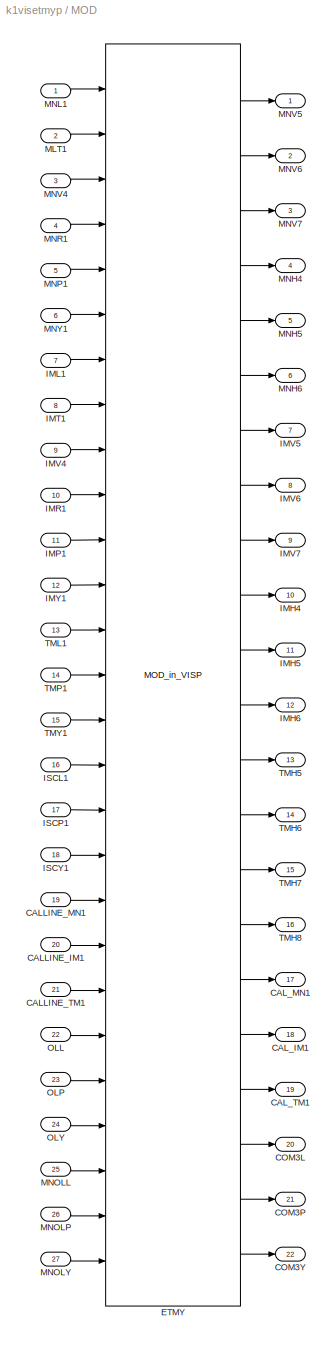
BLOCK [SubSystem] MOD
  Ports = [27, 22]
  RequestExecContextInheritance = off
  SID = 1034
  Tag = top_names
  Variant = off
BLOCK [Inport] MOD/CALLINE_IM1
  IconDisplay = Port number
  Port = 20
  SID = 1054
BLOCK [Inport] MOD/CALLINE_MN1
  IconDisplay = Port number
  Port = 19
  SID = 1053
BLOCK [Inport] MOD/CALLINE_TM1
  IconDisplay = Port number
  Port = 21
  SID = 1055
BLOCK [Outport] MOD/CAL_IM1
  IconDisplay = Port number
  Port = 18
  SID = 1074
BLOCK [Outport] MOD/CAL_MN1
  IconDisplay = Port number
  Port = 17
  SID = 1073
BLOCK [Outport] MOD/CAL_TM1
  IconDisplay = Port number
  Port = 19
  SID = 1075
BLOCK [Outport] MOD/COM3L
  IconDisplay = Port number
  Port = 20
  SID = 1095
BLOCK [Outport] MOD/COM3P
  IconDisplay = Port number
  Port = 21
  SID = 1096
BLOCK [Outport] MOD/COM3Y
  IconDisplay = Port number
  Port = 22
  SID = 1097
BLOCK [Reference] MOD/ETMY  REF=VIS_LIB/MODAL/MOD_in_VISP
  Ports = [27, 22]
  SID = 1056
  SourceBlock = VIS_LIB/MODAL/MOD_in_VISP
  SourceType = SubSystem
  Tag = top_names
BLOCK [Outport] MOD/IMH4
  IconDisplay = Port number
  Port = 10
  SID = 1066
BLOCK [Outport] MOD/IMH5
  IconDisplay = Port number
  Port = 11
  SID = 1067
BLOCK [Outport] MOD/IMH6
  IconDisplay = Port number
  Port = 12
  SID = 1068
BLOCK [Inport] MOD/IML1
  IconDisplay = Port number
  Port = 7
  SID = 1041
BLOCK [Inport] MOD/IMP1
  IconDisplay = Port number
  Port = 11
  SID = 1045
BLOCK [Inport] MOD/IMR1
  IconDisplay = Port number
  Port = 10
  SID = 1044
BLOCK [Inport] MOD/IMT1
  IconDisplay = Port number
  Port = 8
  SID = 1042
BLOCK [Inport] MOD/IMV4
  IconDisplay = Port number
  Port = 9
  SID = 1043
BLOCK [Outport] MOD/IMV5
  IconDisplay = Port number
  Port = 7
  SID = 1063
BLOCK [Outport] MOD/IMV6
  IconDisplay = Port number
  Port = 8
  SID = 1064
BLOCK [Outport] MOD/IMV7
  IconDisplay = Port number
  Port = 9
  SID = 1065
BLOCK [Inport] MOD/IMY1
  IconDisplay = Port number
  Port = 12
  SID = 1046
BLOCK [Inport] MOD/ISCL1
  IconDisplay = Port number
  Port = 16
  SID = 1050
BLOCK [Inport] MOD/ISCP1
  IconDisplay = Port number
  Port = 17
  SID = 1051
BLOCK [Inport] MOD/ISCY1
  IconDisplay = Port number
  Port = 18
  SID = 1052
BLOCK [Inport] MOD/MLT1
  IconDisplay = Port number
  Port = 2
  SID = 1036
BLOCK [Outport] MOD/MNH4
  IconDisplay = Port number
  Port = 4
  SID = 1060
BLOCK [Outport] MOD/MNH5
  IconDisplay = Port number
  Port = 5
  SID = 1061
BLOCK [Outport] MOD/MNH6
  IconDisplay = Port number
  Port = 6
  SID = 1062
BLOCK [Inport] MOD/MNL1
  IconDisplay = Port number
  SID = 1035
BLOCK [Inport] MOD/MNOLL
  IconDisplay = Port number
  Port = 25
  SID = 1110
BLOCK [Inport] MOD/MNOLP
  IconDisplay = Port number
  Port = 26
  SID = 1111
BLOCK [Inport] MOD/MNOLY
  IconDisplay = Port number
  Port = 27
  SID = 1112
BLOCK [Inport] MOD/MNP1
  IconDisplay = Port number
  Port = 5
  SID = 1039
BLOCK [Inport] MOD/MNR1
  IconDisplay = Port number
  Port = 4
  SID = 1038
BLOCK [Inport] MOD/MNV4
  IconDisplay = Port number
  Port = 3
  SID = 1037
BLOCK [Outport] MOD/MNV5
  IconDisplay = Port number
  SID = 1057
BLOCK [Outport] MOD/MNV6
  IconDisplay = Port number
  Port = 2
  SID = 1058
BLOCK [Outport] MOD/MNV7
  IconDisplay = Port number
  Port = 3
  SID = 1059
BLOCK [Inport] MOD/MNY1
  IconDisplay = Port number
  Port = 6
  SID = 1040
BLOCK [Inport] MOD/OLL
  IconDisplay = Port number
  Port = 22
  SID = 1104
BLOCK [Inport] MOD/OLP
  IconDisplay = Port number
  Port = 23
  SID = 1105
BLOCK [Inport] MOD/OLY
  IconDisplay = Port number
  Port = 24
  SID = 1106
BLOCK [Outport] MOD/TMH5
  IconDisplay = Port number
  Port = 13
  SID = 1069
BLOCK [Outport] MOD/TMH6
  IconDisplay = Port number
  Port = 14
  SID = 1070
BLOCK [Outport] MOD/TMH7
  IconDisplay = Port number
  Port = 15
  SID = 1071
BLOCK [Outport] MOD/TMH8
  IconDisplay = Port number
  Port = 16
  SID = 1072
BLOCK [Inport] MOD/TML1
  IconDisplay = Port number
  Port = 13
  SID = 1047
BLOCK [Inport] MOD/TMP1
  IconDisplay = Port number
  Port = 14
  SID = 1048
BLOCK [Inport] MOD/TMY1
  IconDisplay = Port number
  Port = 15
  SID = 1049
BLOCK [Mux] Mux3
  DisplayOption = bar
  Inputs = 16
  Ports = [16, 1]
  SID = 1076
BLOCK [Terminator] Terminator1
  SID = 728
BLOCK [Terminator] Terminator12
  SID = 725
BLOCK [Terminator] Terminator2
  SID = 641
BLOCK [Terminator] Terminator3
  SID = 1100
BLOCK [Terminator] Terminator4
  SID = 1079
BLOCK [Terminator] Terminator5
  SID = 1077
BLOCK [Terminator] Terminator7
  SID = 1078
BLOCK [Reference] site=K1\nrate=16K\ndcuid=108\nhost=k1ey1\nspecific_cpu=3\nadcSlave=1  REF=cdsParameters/Subsystem
  AttributesFormatString = %<Tag>
  Description = Purpose:                                                                                                                                                                                                                                \nProvide system parameters to the FE code generator to properly configure the generated EPICS names, rep rate of the FE controller, and the Data Acquisition node ID fo...<+2934ch>
  Ports = []
  SID = 783
  SourceBlock = cdsParameters/Subsystem
  SourceType = SubSystem
  Tag = cdsParameters
ANNOTATION (root): \n \n ADC
ANNOTATION (root): \n \n BIO Control Outputs
ANNOTATION (root): \n \n BIO Monitor Input
ANNOTATION (root): \n \n DAC
ANNOTATION (root): \n \n Unused channels: \n <adc_0_3> \n <adc_0_15> \n <adc_0_19>
LINE ADC0:1 -> Terminator1:1
LINE ADC1:1 -> Goto1:1
LINE ADC:1 -> Bus\nSelector1:1
LINE Bus\nSelector1:1 -> ETMY:1
LINE Bus\nSelector1:2 -> ETMY:2
LINE Bus\nSelector1:3 -> ETMY:3
LINE Bus\nSelector1:4 -> ETMY:4
LINE Bus\nSelector1:5 -> ETMY:5
LINE Bus\nSelector1:6 -> ETMY:6
LINE Bus\nSelector1:7 -> ETMY:7
LINE Bus\nSelector1:8 -> ETMY:8
NET CBI_H32_C2:1 -> ETMY_BIO_CDMON_MNIMV:1, ETMY_CHK_DI_5:1
NET CBI_H32_C3:1 -> ETMY_BIO_CDMON_IMB:1, ETMY_CHK_DI_7:1
LINE CBI_H32_C4:1 -> ETMY_BIO_CDMON_NOTUSE:1
NET CBI_L32_C2:1 -> ETMY_BIO_CDMON__MNH:1, ETMY_CHK_DI_4:1
NET CBI_L32_C3:1 -> ETMY_BIO_CDMON_IMH:1, ETMY_CHK_DI_6:1
NET CBI_L32_C4:1 -> ETMY_BIO_CDMON_TM:1, ETMY_CHK_DI_8:1
LINE Coil Driver1:1 -> ETMY:10
LINE Coil Driver2:1 -> ETMY:12
LINE Coil Driver3:1 -> ETMY:14
LINE Coil Driver4:1 -> ETMY:16
LINE Coil Driver5 CTRL:1 -> ETMY_BIO_CDCTRL_MNH:1
LINE Coil Driver6 CTRL:1 -> ETMY_BIO_CDCTRL_MNIMV:1
LINE Coil Driver7 CTRL:1 -> ETMY_BIO_CDCTRL_IMH:1
LINE Coil Driver8 CTRL:1 -> ETMY_BIO_CDCTRL_IMB:1
LINE Coil Driver9 CTRL:1 -> ETMY_BIO_CDCTRL_TM:1
LINE Coil Driver9:1 -> ETMY:18
LINE Demux:1 -> ETMY:21
LINE Demux:10 -> ETMY:30
LINE Demux:11 -> ETMY:31
LINE Demux:12 -> ETMY:32
LINE Demux:13 -> ETMY:33
LINE Demux:14 -> ETMY:34
LINE Demux:15 -> ETMY:35
LINE Demux:16 -> ETMY:36
LINE Demux:2 -> ETMY:22
LINE Demux:3 -> ETMY:23
LINE Demux:4 -> ETMY:24
LINE Demux:5 -> ETMY:25
LINE Demux:6 -> ETMY:26
LINE Demux:7 -> ETMY:27
LINE Demux:8 -> ETMY:28
LINE Demux:9 -> ETMY:29
LINE ETMY:1 -> Goto34:1
LINE ETMY:10 -> Goto22:1
LINE ETMY:11 -> Goto25:1
LINE ETMY:12 -> Goto24:1
LINE ETMY:13 -> Goto26:1
LINE ETMY:14 -> Goto27:1
LINE ETMY:15 -> Goto28:1
LINE ETMY:16 -> Goto29:1
LINE ETMY:17 -> Goto36:1
LINE ETMY:18 -> Goto37:1
LINE ETMY:19 -> Goto38:1
LINE ETMY:2 -> Goto35:1
LINE ETMY:20 -> Goto39:1
LINE ETMY:21 -> Goto40:1
LINE ETMY:3 -> Goto30:1
LINE ETMY:4 -> Goto31:1
LINE ETMY:5 -> Goto32:1
LINE ETMY:6 -> Goto33:1
LINE ETMY:7 -> Goto19:1
LINE ETMY:8 -> Goto20:1
LINE ETMY:9 -> Goto21:1
LINE ETMY_BIO_CDCTRL_IMB:1 -> CBO_H32_C3:1
LINE ETMY_BIO_CDCTRL_IMH:1 -> CBO_L32_C3:1
LINE ETMY_BIO_CDCTRL_MNH/BIO_CDCTRL_In:1 -> ETMY_BIO_CDCTRL_MNH/cdsWord2Bit:1
LINE ETMY_BIO_CDCTRL_MNH/BIT2WORD2/Gain:1 -> ETMY_BIO_CDCTRL_MNH/BIT2WORD2/Sum:2
LINE ETMY_BIO_CDCTRL_MNH/BIT2WORD2/In10:1 -> ETMY_BIO_CDCTRL_MNH/BIT2WORD2/cdsBit2Word:10
LINE ETMY_BIO_CDCTRL_MNH/BIT2WORD2/In11:1 -> ETMY_BIO_CDCTRL_MNH/BIT2WORD2/cdsBit2Word:11
LINE ETMY_BIO_CDCTRL_MNH/BIT2WORD2/In12:1 -> ETMY_BIO_CDCTRL_MNH/BIT2WORD2/cdsBit2Word:12
LINE ETMY_BIO_CDCTRL_MNH/BIT2WORD2/In13:1 -> ETMY_BIO_CDCTRL_MNH/BIT2WORD2/cdsBit2Word:13
LINE ETMY_BIO_CDCTRL_MNH/BIT2WORD2/In14:1 -> ETMY_BIO_CDCTRL_MNH/BIT2WORD2/cdsBit2Word:14
LINE ETMY_BIO_CDCTRL_MNH/BIT2WORD2/In15:1 -> ETMY_BIO_CDCTRL_MNH/BIT2WORD2/cdsBit2Word:15
LINE ETMY_BIO_CDCTRL_MNH/BIT2WORD2/In16:1 -> ETMY_BIO_CDCTRL_MNH/BIT2WORD2/cdsBit2Word:16
LINE ETMY_BIO_CDCTRL_MNH/BIT2WORD2/In17:1 -> ETMY_BIO_CDCTRL_MNH/BIT2WORD2/cdsBit2Word1:1
LINE ETMY_BIO_CDCTRL_MNH/BIT2WORD2/In18:1 -> ETMY_BIO_CDCTRL_MNH/BIT2WORD2/cdsBit2Word1:2
LINE ETMY_BIO_CDCTRL_MNH/BIT2WORD2/In19:1 -> ETMY_BIO_CDCTRL_MNH/BIT2WORD2/cdsBit2Word1:3
LINE ETMY_BIO_CDCTRL_MNH/BIT2WORD2/In1:1 -> ETMY_BIO_CDCTRL_MNH/BIT2WORD2/cdsBit2Word:1
LINE ETMY_BIO_CDCTRL_MNH/BIT2WORD2/In20:1 -> ETMY_BIO_CDCTRL_MNH/BIT2WORD2/cdsBit2Word1:4
LINE ETMY_BIO_CDCTRL_MNH/BIT2WORD2/In21:1 -> ETMY_BIO_CDCTRL_MNH/BIT2WORD2/cdsBit2Word1:5
LINE ETMY_BIO_CDCTRL_MNH/BIT2WORD2/In22:1 -> ETMY_BIO_CDCTRL_MNH/BIT2WORD2/cdsBit2Word1:6
LINE ETMY_BIO_CDCTRL_MNH/BIT2WORD2/In23:1 -> ETMY_BIO_CDCTRL_MNH/BIT2WORD2/cdsBit2Word1:7
LINE ETMY_BIO_CDCTRL_MNH/BIT2WORD2/In24:1 -> ETMY_BIO_CDCTRL_MNH/BIT2WORD2/cdsBit2Word1:8
LINE ETMY_BIO_CDCTRL_MNH/BIT2WORD2/In25:1 -> ETMY_BIO_CDCTRL_MNH/BIT2WORD2/cdsBit2Word1:9
LINE ETMY_BIO_CDCTRL_MNH/BIT2WORD2/In26:1 -> ETMY_BIO_CDCTRL_MNH/BIT2WORD2/cdsBit2Word1:10
LINE ETMY_BIO_CDCTRL_MNH/BIT2WORD2/In27:1 -> ETMY_BIO_CDCTRL_MNH/BIT2WORD2/cdsBit2Word1:11
LINE ETMY_BIO_CDCTRL_MNH/BIT2WORD2/In28:1 -> ETMY_BIO_CDCTRL_MNH/BIT2WORD2/cdsBit2Word1:12
LINE ETMY_BIO_CDCTRL_MNH/BIT2WORD2/In29:1 -> ETMY_BIO_CDCTRL_MNH/BIT2WORD2/cdsBit2Word1:13
LINE ETMY_BIO_CDCTRL_MNH/BIT2WORD2/In2:1 -> ETMY_BIO_CDCTRL_MNH/BIT2WORD2/cdsBit2Word:2
LINE ETMY_BIO_CDCTRL_MNH/BIT2WORD2/In30:1 -> ETMY_BIO_CDCTRL_MNH/BIT2WORD2/cdsBit2Word1:14
LINE ETMY_BIO_CDCTRL_MNH/BIT2WORD2/In31:1 -> ETMY_BIO_CDCTRL_MNH/BIT2WORD2/cdsBit2Word1:15
LINE ETMY_BIO_CDCTRL_MNH/BIT2WORD2/In32:1 -> ETMY_BIO_CDCTRL_MNH/BIT2WORD2/cdsBit2Word1:16
LINE ETMY_BIO_CDCTRL_MNH/BIT2WORD2/In3:1 -> ETMY_BIO_CDCTRL_MNH/BIT2WORD2/cdsBit2Word:3
LINE ETMY_BIO_CDCTRL_MNH/BIT2WORD2/In4:1 -> ETMY_BIO_CDCTRL_MNH/BIT2WORD2/cdsBit2Word:4
LINE ETMY_BIO_CDCTRL_MNH/BIT2WORD2/In5:1 -> ETMY_BIO_CDCTRL_MNH/BIT2WORD2/cdsBit2Word:5
LINE ETMY_BIO_CDCTRL_MNH/BIT2WORD2/In6:1 -> ETMY_BIO_CDCTRL_MNH/BIT2WORD2/cdsBit2Word:6
LINE ETMY_BIO_CDCTRL_MNH/BIT2WORD2/In7:1 -> ETMY_BIO_CDCTRL_MNH/BIT2WORD2/cdsBit2Word:7
LINE ETMY_BIO_CDCTRL_MNH/BIT2WORD2/In8:1 -> ETMY_BIO_CDCTRL_MNH/BIT2WORD2/cdsBit2Word:8
LINE ETMY_BIO_CDCTRL_MNH/BIT2WORD2/In9:1 -> ETMY_BIO_CDCTRL_MNH/BIT2WORD2/cdsBit2Word:9
LINE ETMY_BIO_CDCTRL_MNH/BIT2WORD2/Sum:1 -> ETMY_BIO_CDCTRL_MNH/BIT2WORD2/Out1:1
LINE ETMY_BIO_CDCTRL_MNH/BIT2WORD2/cdsBit2Word1:1 -> ETMY_BIO_CDCTRL_MNH/BIT2WORD2/Gain:1
LINE ETMY_BIO_CDCTRL_MNH/BIT2WORD2/cdsBit2Word:1 -> ETMY_BIO_CDCTRL_MNH/BIT2WORD2/Sum:1
LINE ETMY_BIO_CDCTRL_MNH/BIT2WORD2:1 -> ETMY_BIO_CDCTRL_MNH/DIO_OUT:1
LINE ETMY_BIO_CDCTRL_MNH/DIO_OUT:1 -> ETMY_BIO_CDCTRL_MNH/DIO_CDCTRL_Out:1
NET ETMY_BIO_CDCTRL_MNH/Ground2:1 -> ETMY_BIO_CDCTRL_MNH/BIT2WORD2:18, ETMY_BIO_CDCTRL_MNH/BIT2WORD2:19, ETMY_BIO_CDCTRL_MNH/BIT2WORD2:20, ETMY_BIO_CDCTRL_MNH/BIT2WORD2:21, ETMY_BIO_CDCTRL_MNH/BIT2WORD2:22, ETMY_BIO_CDCTRL_MNH/BIT2WORD2:23, ETMY_BIO_CDCTRL_MNH/BIT2WORD2:24, ETMY_BIO_CDCTRL_MNH/BIT2WORD2:25, ETMY_BIO_CDCTRL_MNH/BIT2WORD2:26, ETMY_BIO_CDCTRL_MNH/BIT2WORD2:27, ETMY_BIO_CDCTRL_MNH/BIT2WORD2:28, ETMY_BIO_CDCTRL_MNH/BIT2WORD2:29, ETMY_BIO_CDCTRL_MNH/BIT2WORD2:30, ETMY_BIO_CDCTRL_MNH/BIT2WORD2:31, ETMY_BIO_CDCTRL_MNH/BIT2WORD2:32
LINE ETMY_BIO_CDCTRL_MNH/Ground66:1 -> ETMY_BIO_CDCTRL_MNH/WD_RESET:1
LINE ETMY_BIO_CDCTRL_MNH/WD_RESET:1 -> ETMY_BIO_CDCTRL_MNH/BIT2WORD2:17
LINE ETMY_BIO_CDCTRL_MNH/cdsWord2Bit:1 -> ETMY_BIO_CDCTRL_MNH/BIT2WORD2:1
LINE ETMY_BIO_CDCTRL_MNH/cdsWord2Bit:10 -> ETMY_BIO_CDCTRL_MNH/BIT2WORD2:10
LINE ETMY_BIO_CDCTRL_MNH/cdsWord2Bit:11 -> ETMY_BIO_CDCTRL_MNH/BIT2WORD2:11
LINE ETMY_BIO_CDCTRL_MNH/cdsWord2Bit:12 -> ETMY_BIO_CDCTRL_MNH/BIT2WORD2:12
LINE ETMY_BIO_CDCTRL_MNH/cdsWord2Bit:13 -> ETMY_BIO_CDCTRL_MNH/BIT2WORD2:13
LINE ETMY_BIO_CDCTRL_MNH/cdsWord2Bit:14 -> ETMY_BIO_CDCTRL_MNH/BIT2WORD2:14
LINE ETMY_BIO_CDCTRL_MNH/cdsWord2Bit:15 -> ETMY_BIO_CDCTRL_MNH/BIT2WORD2:15
LINE ETMY_BIO_CDCTRL_MNH/cdsWord2Bit:16 -> ETMY_BIO_CDCTRL_MNH/BIT2WORD2:16
LINE ETMY_BIO_CDCTRL_MNH/cdsWord2Bit:2 -> ETMY_BIO_CDCTRL_MNH/BIT2WORD2:2
LINE ETMY_BIO_CDCTRL_MNH/cdsWord2Bit:3 -> ETMY_BIO_CDCTRL_MNH/BIT2WORD2:3
LINE ETMY_BIO_CDCTRL_MNH/cdsWord2Bit:4 -> ETMY_BIO_CDCTRL_MNH/BIT2WORD2:4
LINE ETMY_BIO_CDCTRL_MNH/cdsWord2Bit:5 -> ETMY_BIO_CDCTRL_MNH/BIT2WORD2:5
LINE ETMY_BIO_CDCTRL_MNH/cdsWord2Bit:6 -> ETMY_BIO_CDCTRL_MNH/BIT2WORD2:6
LINE ETMY_BIO_CDCTRL_MNH/cdsWord2Bit:7 -> ETMY_BIO_CDCTRL_MNH/BIT2WORD2:7
LINE ETMY_BIO_CDCTRL_MNH/cdsWord2Bit:8 -> ETMY_BIO_CDCTRL_MNH/BIT2WORD2:8
LINE ETMY_BIO_CDCTRL_MNH/cdsWord2Bit:9 -> ETMY_BIO_CDCTRL_MNH/BIT2WORD2:9
LINE ETMY_BIO_CDCTRL_MNH:1 -> CBO_L32_C2:1
LINE ETMY_BIO_CDCTRL_MNIMV:1 -> CBO_H32_C2:1
LINE ETMY_BIO_CDCTRL_NOTUSE:1 -> CBO_H32_C4:1
LINE ETMY_BIO_CDCTRL_TM:1 -> CBO_L32_C4:1
LINE ETMY_BIO_CDMON_IMB:1 -> Coil Driver8 MON:1
LINE ETMY_BIO_CDMON_IMH:1 -> Coil Driver7 MON:1
LINE ETMY_BIO_CDMON_MNIMV:1 -> Coil Driver6 MON:1
LINE ETMY_BIO_CDMON_NOTUSE:1 -> Terminator2:1
LINE ETMY_BIO_CDMON_TM:1 -> Coil Driver9 MON:1
LINE ETMY_BIO_CDMON__MNH:1 -> Coil Driver5 MON:1
LINE From16:1 -> DAC_1:8
LINE From17:1 -> DAC_1:9
LINE From18:1 -> DAC_1:7
LINE From19:1 -> DAC_1:11
LINE From1:1 -> DAC_1:1
LINE From20:1 -> DAC_1:12
LINE From21:1 -> DAC_1:10
LINE From22:1 -> DAC_1:13
LINE From23:1 -> DAC_1:14
LINE From24:1 -> DAC_1:15
LINE From25:1 -> DAC_1:16
LINE From26:1 -> DAC_1:2
LINE From27:1 -> DAC_1:3
LINE From28:1 -> DAC_1:4
LINE From29:1 -> DAC_1:5
LINE From30:1 -> DAC_1:6
LINE Ground10:1 -> DAC_2:3
LINE Ground11:1 -> DAC_2:6
LINE Ground12:1 -> DAC_0:2
LINE Ground13:1 -> DAC_2:16
LINE Ground14:1 -> DAC_2:15
LINE Ground15:1 -> DAC_2:11
LINE Ground16:1 -> DAC_2:13
LINE Ground17:1 -> DAC_2:12
LINE Ground18:1 -> DAC_0:1
LINE Ground19:1 -> DAC_0:4
LINE Ground1:1 -> ETMY_BIO_CDCTRL_NOTUSE:1
LINE Ground20:1 -> DAC_0:3
LINE Ground21:1 -> DAC_0:6
LINE Ground22:1 -> DAC_2:9
LINE Ground23:1 -> DAC_0:5
LINE Ground24:1 -> DAC_0:8
LINE Ground25:1 -> DAC_2:5
LINE Ground26:1 -> DAC_2:10
LINE Ground27:1 -> DAC_2:8
LINE Ground28:1 -> DAC_2:7
LINE Ground29:1 -> DAC_0:7
LINE Ground2:1 -> ETMY:11
LINE Ground30:1 -> DAC_0:10
LINE Ground31:1 -> DAC_0:9
LINE Ground32:1 -> DAC_0:12
LINE Ground33:1 -> DAC_0:11
LINE Ground34:1 -> DAC_0:14
LINE Ground35:1 -> ETMY:17
LINE Ground36:1 -> ETMY:9
LINE Ground37:1 -> K1:CAL-ETMY_LINE_MN:1
LINE Ground38:1 -> K1:CAL-ETMY_LINE_IM:1
LINE Ground39:1 -> DAC_0:13
LINE Ground3:1 -> DAC_2:2
LINE Ground40:1 -> DAC_0:16
LINE Ground41:1 -> DAC_0:15
LINE Ground42:1 -> K1:VIS-ETMY_MASTERSWITCH_OUT:1
LINE Ground43:1 -> K1:CAL-ETMY_LINE_TM:1
LINE Ground44:1 -> K1:VIS-ETMY_MN_COIL_V1:1
LINE Ground45:1 -> K1:ASC2-VISETMYP_FB_PIT:1
LINE Ground46:1 -> K1:LSC-ETMY_L_VISETMY_L:1
LINE Ground47:1 -> K1:MODALETMY_OLL:1
LINE Ground48:1 -> K1:MODALETMY_OLP:1
LINE Ground49:1 -> K1:MODALETMY_OLY:1
LINE Ground4:1 -> DAC_2:1
LINE Ground50:1 -> MOD:26
LINE Ground51:1 -> MOD:25
LINE Ground52:1 -> K1:VIS-ETMY_MN_COIL_V2:1
LINE Ground53:1 -> K1:VIS-ETMY_MN_COIL_V3:1
LINE Ground54:1 -> K1:VIS-ETMY_MN_COIL_H1:1
LINE Ground55:1 -> K1:VIS-ETMY_MN_COIL_H2:1
LINE Ground56:1 -> K1:VIS-ETMY_MN_COIL_H3:1
LINE Ground57:1 -> K1:VIS-ETMY_IM_COIL_V1:1
LINE Ground58:1 -> K1:VIS-ETMY_IM_COIL_V2:1
LINE Ground59:1 -> K1:VIS-ETMY_IM_COIL_V3:1
LINE Ground5:1 -> K1:VIS-ETMY_TOWERWDFLAG:1
LINE Ground60:1 -> K1:VIS-ETMY_IM_COIL_H1:1
LINE Ground61:1 -> K1:VIS-ETMY_IM_COIL_H2:1
LINE Ground62:1 -> K1:VIS-ETMY_IM_COIL_H3:1
LINE Ground63:1 -> K1:VIS-ETMY_TM_COIL_H1:1
LINE Ground64:1 -> K1:VIS-ETMY_TM_COIL_H2:1
LINE Ground65:1 -> K1:VIS-ETMY_TM_COIL_H3:1
LINE Ground66:1 -> K1:MODALETMY_MNOLY:1
LINE Ground67:1 -> K1:ASC2-VISETMYP_FB_YAW:1
LINE Ground6:1 -> ETMY:13
LINE Ground7:1 -> ETMY:15
LINE Ground8:1 -> DAC_2:4
LINE Ground9:1 -> DAC_2:14
LINE K1:ASC2-VISETMYP_FB_PIT:1 -> MOD:17
LINE K1:ASC2-VISETMYP_FB_YAW:1 -> MOD:18
LINE K1:CAL-ETMY_LINE_IM:1 -> MOD:20
LINE K1:CAL-ETMY_LINE_MN:1 -> MOD:19
LINE K1:CAL-ETMY_LINE_TM:1 -> MOD:21
LINE K1:LSC-ETMY_L_VISETMY_L:1 -> MOD:16
LINE K1:MODALETMY_MNOLY:1 -> MOD:27
LINE K1:MODALETMY_OLL:1 -> MOD:22
LINE K1:MODALETMY_OLP:1 -> MOD:23
LINE K1:MODALETMY_OLY:1 -> MOD:24
LINE K1:VIS-ETMY_IM_COIL_H1:1 -> MOD:10
LINE K1:VIS-ETMY_IM_COIL_H2:1 -> MOD:11
LINE K1:VIS-ETMY_IM_COIL_H3:1 -> MOD:12
LINE K1:VIS-ETMY_IM_COIL_V1:1 -> MOD:7
LINE K1:VIS-ETMY_IM_COIL_V2:1 -> MOD:8
LINE K1:VIS-ETMY_IM_COIL_V3:1 -> MOD:9
LINE K1:VIS-ETMY_MASTERSWITCH_OUT:1 -> ETMY:19
LINE K1:VIS-ETMY_MN_COIL_H1:1 -> MOD:4
LINE K1:VIS-ETMY_MN_COIL_H2:1 -> MOD:5
LINE K1:VIS-ETMY_MN_COIL_H3:1 -> MOD:6
LINE K1:VIS-ETMY_MN_COIL_V1:1 -> MOD:1
LINE K1:VIS-ETMY_MN_COIL_V2:1 -> MOD:2
LINE K1:VIS-ETMY_MN_COIL_V3:1 -> MOD:3
LINE K1:VIS-ETMY_TM_COIL_H1:1 -> MOD:13
LINE K1:VIS-ETMY_TM_COIL_H2:1 -> MOD:14
LINE K1:VIS-ETMY_TM_COIL_H3:1 -> MOD:15
LINE K1:VIS-ETMY_TOWERWDFLAG:1 -> ETMY:20
LINE K1:VIS-ETMY_TOWERWDFLAG:2 -> Terminator12:1
LINE MOD/CALLINE_IM1:1 -> MOD/ETMY:20
LINE MOD/CALLINE_MN1:1 -> MOD/ETMY:19
LINE MOD/CALLINE_TM1:1 -> MOD/ETMY:21
LINE MOD/ETMY:1 -> MOD/MNV5:1
LINE MOD/ETMY:10 -> MOD/IMH4:1
LINE MOD/ETMY:11 -> MOD/IMH5:1
LINE MOD/ETMY:12 -> MOD/IMH6:1
LINE MOD/ETMY:13 -> MOD/TMH5:1
LINE MOD/ETMY:14 -> MOD/TMH6:1
LINE MOD/ETMY:15 -> MOD/TMH7:1
LINE MOD/ETMY:16 -> MOD/TMH8:1
LINE MOD/ETMY:17 -> MOD/CAL_MN1:1
LINE MOD/ETMY:18 -> MOD/CAL_IM1:1
LINE MOD/ETMY:19 -> MOD/CAL_TM1:1
LINE MOD/ETMY:2 -> MOD/MNV6:1
LINE MOD/ETMY:20 -> MOD/COM3L:1
LINE MOD/ETMY:21 -> MOD/COM3P:1
LINE MOD/ETMY:22 -> MOD/COM3Y:1
LINE MOD/ETMY:3 -> MOD/MNV7:1
LINE MOD/ETMY:4 -> MOD/MNH4:1
LINE MOD/ETMY:5 -> MOD/MNH5:1
LINE MOD/ETMY:6 -> MOD/MNH6:1
LINE MOD/ETMY:7 -> MOD/IMV5:1
LINE MOD/ETMY:8 -> MOD/IMV6:1
LINE MOD/ETMY:9 -> MOD/IMV7:1
LINE MOD/IML1:1 -> MOD/ETMY:7
LINE MOD/IMP1:1 -> MOD/ETMY:11
LINE MOD/IMR1:1 -> MOD/ETMY:10
LINE MOD/IMT1:1 -> MOD/ETMY:8
LINE MOD/IMV4:1 -> MOD/ETMY:9
LINE MOD/IMY1:1 -> MOD/ETMY:12
LINE MOD/ISCL1:1 -> MOD/ETMY:16
LINE MOD/ISCP1:1 -> MOD/ETMY:17
LINE MOD/ISCY1:1 -> MOD/ETMY:18
LINE MOD/MLT1:1 -> MOD/ETMY:2
LINE MOD/MNL1:1 -> MOD/ETMY:1
LINE MOD/MNOLL:1 -> MOD/ETMY:25
LINE MOD/MNOLP:1 -> MOD/ETMY:26
LINE MOD/MNOLY:1 -> MOD/ETMY:27
LINE MOD/MNP1:1 -> MOD/ETMY:5
LINE MOD/MNR1:1 -> MOD/ETMY:4
LINE MOD/MNV4:1 -> MOD/ETMY:3
LINE MOD/MNY1:1 -> MOD/ETMY:6
LINE MOD/OLL:1 -> MOD/ETMY:22
LINE MOD/OLP:1 -> MOD/ETMY:23
LINE MOD/OLY:1 -> MOD/ETMY:24
LINE MOD/TML1:1 -> MOD/ETMY:13
LINE MOD/TMP1:1 -> MOD/ETMY:14
LINE MOD/TMY1:1 -> MOD/ETMY:15
LINE MOD:1 -> Mux3:1
LINE MOD:10 -> Mux3:10
LINE MOD:11 -> Mux3:11
LINE MOD:12 -> Mux3:12
LINE MOD:13 -> Mux3:13
LINE MOD:14 -> Mux3:14
LINE MOD:15 -> Mux3:15
LINE MOD:16 -> Mux3:16
LINE MOD:17 -> Terminator5:1
LINE MOD:18 -> Terminator7:1
LINE MOD:19 -> Terminator4:1
LINE MOD:2 -> Mux3:2
LINE MOD:20 -> K1:VISETMYP-VISETMYT_COM2L:1
LINE MOD:21 -> Terminator3:1
LINE MOD:22 -> K1:VISETMYP-VISETMYT_COM2Y:1
LINE MOD:3 -> Mux3:3
LINE MOD:4 -> Mux3:4
LINE MOD:5 -> Mux3:5
LINE MOD:6 -> Mux3:6
LINE MOD:7 -> Mux3:7
LINE MOD:8 -> Mux3:8
LINE MOD:9 -> Mux3:9
LINE Mux3:1 -> Demux:1
note: NET lines group one-source signal fan-out (src -> all destinations, sorted); 1:1 wires keep LINE
